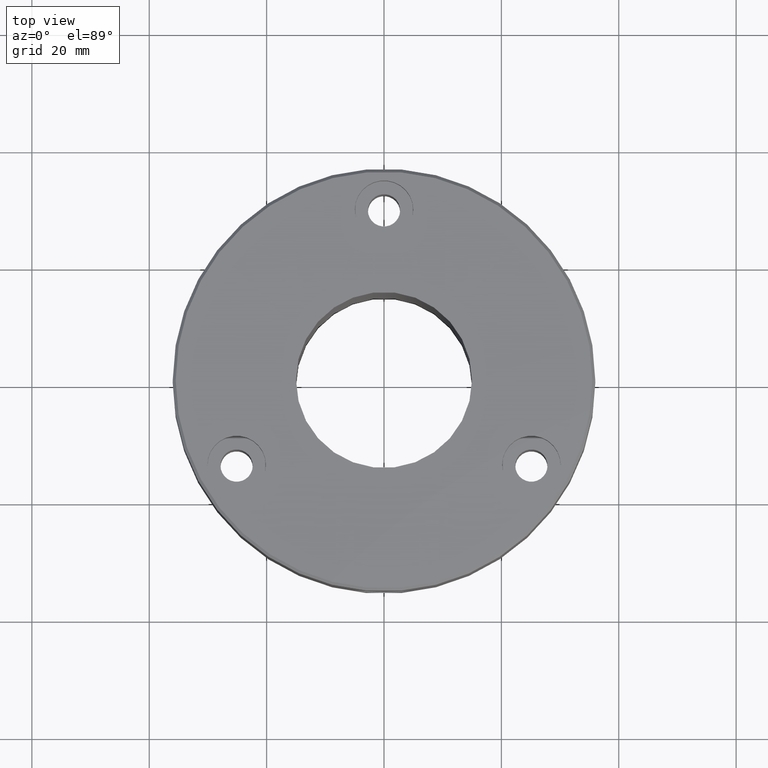
[diagram: clean part render]
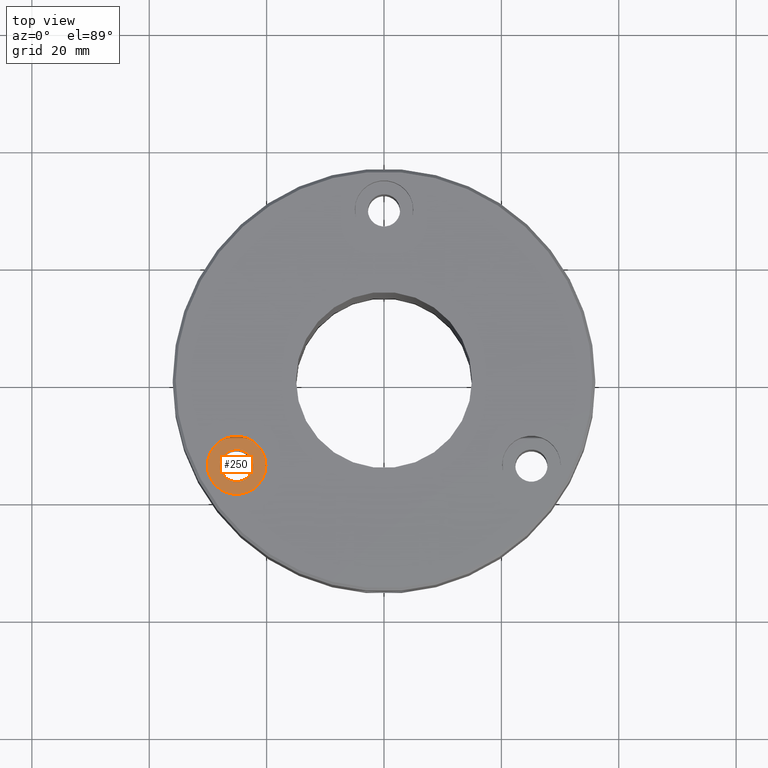
[diagram: same view with one face highlighted and labeled with its STEP entity id]
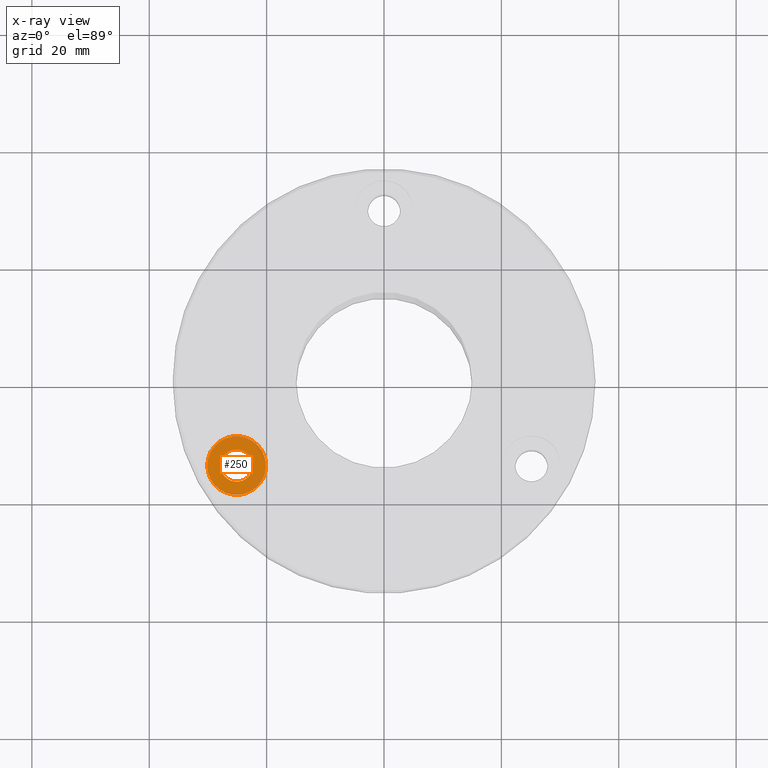
[diagram: x-ray of the same camera — body ghosted, the highlighted face saturated]
A machine part, top view. The second image highlights one B-rep face of the part: STEP entity #250.
The next image is the same camera in x-ray: the body ghosted, the highlighted face saturated — about 0% of this face is hidden behind the body in this view.
In plain terms, the highlighted planar face has unit normal (0, 0, -1).
Its self-contained STEP definition (entity closure, byte-faithful):
#14 = DIRECTION ( 'NONE',  ( -0.000000000000000000, -0.000000000000000000, 1.000000000000000000 ) ) ;
#95 = DIRECTION ( 'NONE',  ( -0.000000000000000000, -0.000000000000000000, 1.000000000000000000 ) ) ;
#124 = AXIS2_PLACEMENT_3D ( 'NONE', #670, #95, #272 ) ;
#132 = EDGE_CURVE ( 'NONE', #1230, #182, #1101, .T. ) ;
#162 = FACE_OUTER_BOUND ( 'NONE', #671, .T. ) ;
#182 = VERTEX_POINT ( 'NONE', #430 ) ;
#188 = CARTESIAN_POINT ( 'NONE',  ( -25.11473670974875105, -14.49999999999994316, -5.400000000000000355 ) ) ;
#226 = CARTESIAN_POINT ( 'NONE',  ( -25.11473670974875105, -14.49999999999994316, -5.400000000000000355 ) ) ;
#250 = ADVANCED_FACE ( 'NONE', ( #787, #162 ), #1231, .F. ) ;
#263 = CIRCLE ( 'NONE', #643, 2.750000000000005773 ) ;
#272 = DIRECTION ( 'NONE',  ( 1.000000000000000000, 0.000000000000000000, 0.000000000000000000 ) ) ;
#327 = AXIS2_PLACEMENT_3D ( 'NONE', #226, #14, #690 ) ;
#430 = CARTESIAN_POINT ( 'NONE',  ( -27.86473670974875816, -14.49999999999994316, -5.400000000000000355 ) ) ;
#445 = DIRECTION ( 'NONE',  ( 0.000000000000000000, 0.000000000000000000, -1.000000000000000000 ) ) ;
#507 = CARTESIAN_POINT ( 'NONE',  ( -22.36473670974874395, -14.49999999999994316, -5.400000000000000355 ) ) ;
#539 = ORIENTED_EDGE ( 'NONE', *, *, #1169, .T. ) ;
#543 = EDGE_CURVE ( 'NONE', #182, #1230, #263, .T. ) ;
#556 = CARTESIAN_POINT ( 'NONE',  ( -20.11473670974875461, -14.49999999999994316, -5.400000000000000355 ) ) ;
#563 = DIRECTION ( 'NONE',  ( -1.000000000000000000, 0.000000000000000000, -0.000000000000000000 ) ) ;
#605 = VERTEX_POINT ( 'NONE', #1108 ) ;
#640 = CIRCLE ( 'NONE', #983, 4.999999999999997335 ) ;
#643 = AXIS2_PLACEMENT_3D ( 'NONE', #1179, #788, #683 ) ;
#652 = ORIENTED_EDGE ( 'NONE', *, *, #543, .F. ) ;
#662 = CARTESIAN_POINT ( 'NONE',  ( -22.36473670974874395, -14.49999999999994316, -5.400000000000000355 ) ) ;
#670 = CARTESIAN_POINT ( 'NONE',  ( -25.11473670974875105, -14.49999999999994316, -5.400000000000000355 ) ) ;
#671 = EDGE_LOOP ( 'NONE', ( #539, #721 ) ) ;
#683 = DIRECTION ( 'NONE',  ( 1.000000000000000000, 0.000000000000000000, 0.000000000000000000 ) ) ;
#690 = DIRECTION ( 'NONE',  ( 1.000000000000000000, 0.000000000000000000, 0.000000000000000000 ) ) ;
#721 = ORIENTED_EDGE ( 'NONE', *, *, #759, .T. ) ;
#759 = EDGE_CURVE ( 'NONE', #605, #1025, #1121, .T. ) ;
#787 = FACE_BOUND ( 'NONE', #990, .T. ) ;
#788 = DIRECTION ( 'NONE',  ( -0.000000000000000000, -0.000000000000000000, 1.000000000000000000 ) ) ;
#810 = ORIENTED_EDGE ( 'NONE', *, *, #132, .F. ) ;
#873 = AXIS2_PLACEMENT_3D ( 'NONE', #662, #445, #563 ) ;
#960 = DIRECTION ( 'NONE',  ( -0.000000000000000000, -0.000000000000000000, 1.000000000000000000 ) ) ;
#983 = AXIS2_PLACEMENT_3D ( 'NONE', #188, #960, #989 ) ;
#989 = DIRECTION ( 'NONE',  ( 1.000000000000000000, 0.000000000000000000, 0.000000000000000000 ) ) ;
#990 = EDGE_LOOP ( 'NONE', ( #810, #652 ) ) ;
#1025 = VERTEX_POINT ( 'NONE', #556 ) ;
#1101 = CIRCLE ( 'NONE', #327, 2.750000000000005773 ) ;
#1108 = CARTESIAN_POINT ( 'NONE',  ( -30.11473670974874750, -14.49999999999994316, -5.400000000000000355 ) ) ;
#1121 = CIRCLE ( 'NONE', #124, 4.999999999999997335 ) ;
#1169 = EDGE_CURVE ( 'NONE', #1025, #605, #640, .T. ) ;
#1179 = CARTESIAN_POINT ( 'NONE',  ( -25.11473670974875105, -14.49999999999994316, -5.400000000000000355 ) ) ;
#1230 = VERTEX_POINT ( 'NONE', #507 ) ;
#1231 = PLANE ( 'NONE',  #873 ) ;